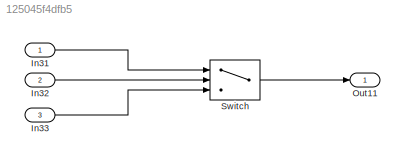
MODEL slx_125045f4dfb5
KIND model
CONFIG AbsTol = auto
CONFIG EnableMultiTasking = on
CONFIG FixedStep = 1.000000
CONFIG MaxStep = auto
CONFIG MinStep = auto
CONFIG RelTol = 1e-3
CONFIG SampleTimeConstraint = Unconstrained
CONFIG Solver = FixedStepDiscrete
CONFIG SolverName = FixedStepDiscrete
CONFIG StartTime = 0.0
CONFIG StopTime = 10.0
BLOCK [Inport] In31
  IconDisplay = Port number
  PortDimensions = [2]
BLOCK [Inport] In32
  IconDisplay = Port number
  OutDataTypeStr = boolean
  Port = 2
  PortDimensions = 2
BLOCK [Inport] In33
  IconDisplay = Port number
  Port = 3
  PortDimensions = [2]
BLOCK [Outport] Out11
  IconDisplay = Port number
BLOCK [Switch] Switch
  Criteria = u2 ~= 0
  InputSameDT = off
  SaturateOnIntegerOverflow = off
LINE In31:1 -> Switch:1
LINE In32:1 -> Switch:2
LINE In33:1 -> Switch:3
LINE Switch:1 -> Out11:1
